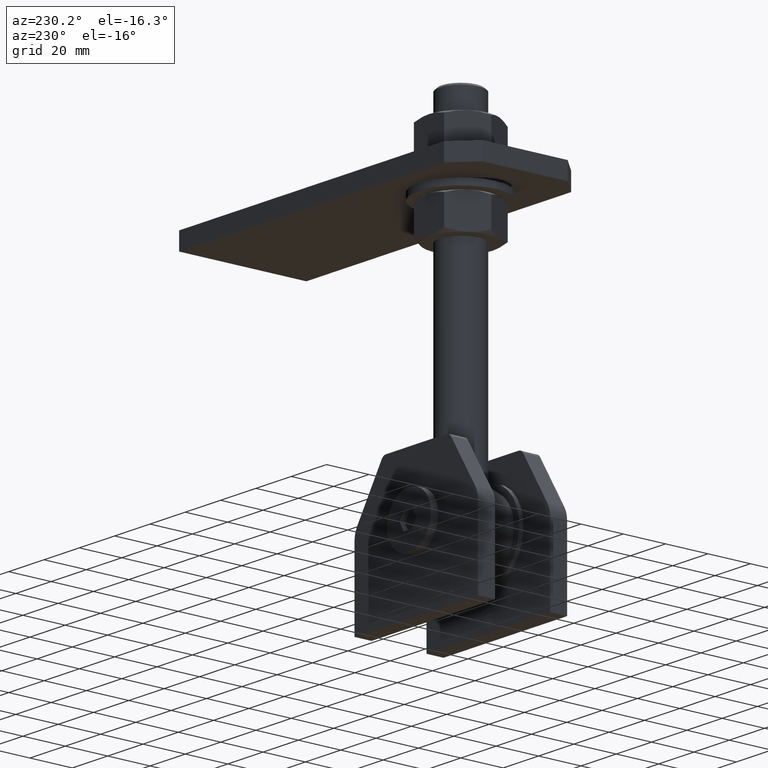
[diagram: clean part render]
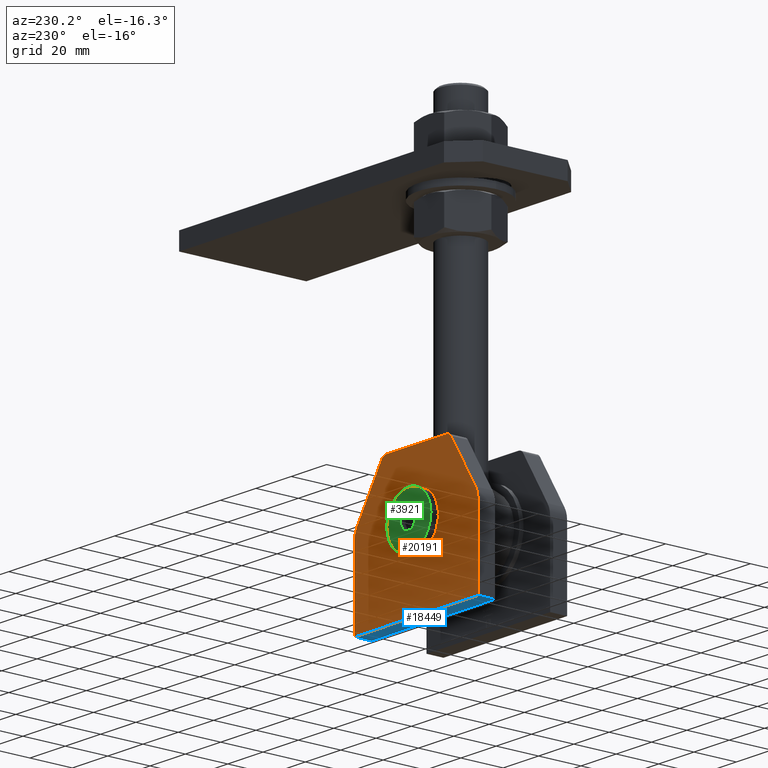
[diagram: same view with three faces highlighted in distinct colors, each labeled with its STEP entity id]
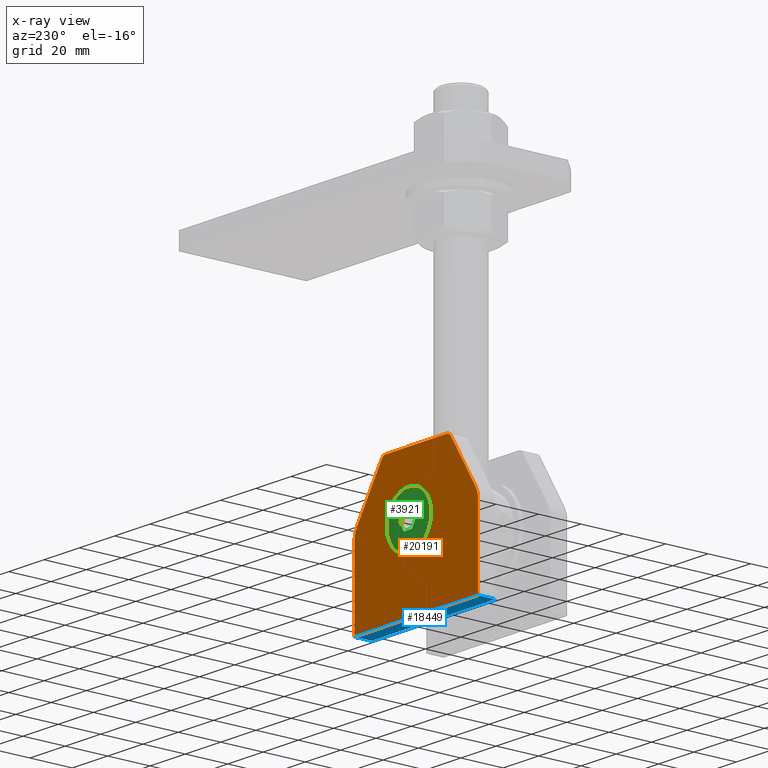
[diagram: x-ray of the same camera — body ghosted, the three highlighted faces saturated]
A machine part, auxiliary view with three faces highlighted in distinct colors.
The next image is the same camera in x-ray (body ghosted, the three faces saturated) — at least one of them is partly hidden behind the body in this view.
Their STEP definitions:

[orange] entity #20191 — the highlighted planar face has unit normal (0, 1, 0).
#202 = CARTESIAN_POINT ( 'NONE',  ( -33.47485153719618722, 4.000000000000003553, 9.008190974567826359 ) ) ;
#351 = EDGE_CURVE ( 'NONE', #22639, #17878, #8158, .T. ) ;
#378 = EDGE_CURVE ( 'NONE', #9752, #23484, #8750, .T. ) ;
#582 = VERTEX_POINT ( 'NONE', #18116 ) ;
#644 = CIRCLE ( 'NONE', #6667, 2.999999999999992450 ) ;
#716 = CARTESIAN_POINT ( 'NONE',  ( -35.00000000000000000, 4.000000000000003553, -32.50000000000000000 ) ) ;
#865 = AXIS2_PLACEMENT_3D ( 'NONE', #4740, #12184, #12445 ) ;
#1042 = DIRECTION ( 'NONE',  ( -1.000000000000000000, -0.000000000000000000, 9.912705577010325549E-17 ) ) ;
#1152 = DIRECTION ( 'NONE',  ( 0.000000000000000000, 0.000000000000000000, 1.000000000000000000 ) ) ;
#1183 = ORIENTED_EDGE ( 'NONE', *, *, #21615, .T. ) ;
#1387 = CARTESIAN_POINT ( 'NONE',  ( 17.10000000000000853, 4.000000000000003553, 32.49999999999999289 ) ) ;
#1401 = FACE_OUTER_BOUND ( 'NONE', #1902, .T. ) ;
#1450 = CIRCLE ( 'NONE', #16414, 2.999999999999992450 ) ;
#1532 = DIRECTION ( 'NONE',  ( 0.000000000000000000, 1.000000000000000000, 0.000000000000000000 ) ) ;
#1567 = AXIS2_PLACEMENT_3D ( 'NONE', #10826, #1532, #16632 ) ;
#1902 = EDGE_LOOP ( 'NONE', ( #10898, #4407, #3645, #1183, #5497, #18488, #6173, #22662, #4907, #5202 ) ) ;
#3645 = ORIENTED_EDGE ( 'NONE', *, *, #15901, .T. ) ;
#3657 = EDGE_CURVE ( 'NONE', #13640, #17986, #22980, .T. ) ;
#3664 = CIRCLE ( 'NONE', #4129, 8.250000000000000000 ) ;
#3940 = VERTEX_POINT ( 'NONE', #15706 ) ;
#4129 = AXIS2_PLACEMENT_3D ( 'NONE', #14873, #7419, #1152 ) ;
#4407 = ORIENTED_EDGE ( 'NONE', *, *, #3657, .T. ) ;
#4740 = CARTESIAN_POINT ( 'NONE',  ( -25.00000000000000000, 4.000000000000003553, 3.700000000000000622 ) ) ;
#4907 = ORIENTED_EDGE ( 'NONE', *, *, #13429, .T. ) ;
#5199 = VECTOR ( 'NONE', #7293, 1000.000000000000000 ) ;
#5202 = ORIENTED_EDGE ( 'NONE', *, *, #8223, .T. ) ;
#5405 = CARTESIAN_POINT ( 'NONE',  ( -19.64245546115884267, 4.000000000000003553, 31.09245729237035150 ) ) ;
#5497 = ORIENTED_EDGE ( 'NONE', *, *, #351, .T. ) ;
#6173 = ORIENTED_EDGE ( 'NONE', *, *, #378, .T. ) ;
#6667 = AXIS2_PLACEMENT_3D ( 'NONE', #15796, #13843, #10227 ) ;
#7293 = DIRECTION ( 'NONE',  ( 0.5308190974567825737, -0.000000000000000000, -0.8474851537196191886 ) ) ;
#7419 = DIRECTION ( 'NONE',  ( 0.000000000000000000, 1.000000000000000000, 0.000000000000000000 ) ) ;
#8158 = LINE ( 'NONE', #1387, #8436 ) ;
#8223 = EDGE_CURVE ( 'NONE', #21060, #16273, #14461, .T. ) ;
#8436 = VECTOR ( 'NONE', #18952, 1000.000000000000000 ) ;
#8750 = LINE ( 'NONE', #11202, #5199 ) ;
#8753 = VECTOR ( 'NONE', #1042, 1000.000000000000000 ) ;
#8757 = DIRECTION ( 'NONE',  ( 0.000000000000000000, 1.000000000000000000, 0.000000000000000000 ) ) ;
#8964 = CARTESIAN_POINT ( 'NONE',  ( 33.47485153719618722, 4.000000000000003553, 9.008190974567817477 ) ) ;
#9006 = DIRECTION ( 'NONE',  ( 0.000000000000000000, 0.000000000000000000, 1.000000000000000000 ) ) ;
#9286 = CARTESIAN_POINT ( 'NONE',  ( 35.00000000000000000, 4.000000000000003553, 3.699999999999993072 ) ) ;
#9428 = EDGE_CURVE ( 'NONE', #582, #582, #3664, .T. ) ;
#9488 = LINE ( 'NONE', #15122, #9765 ) ;
#9752 = VERTEX_POINT ( 'NONE', #24103 ) ;
#9765 = VECTOR ( 'NONE', #14884, 1000.000000000000000 ) ;
#10077 = ORIENTED_EDGE ( 'NONE', *, *, #9428, .F. ) ;
#10227 = DIRECTION ( 'NONE',  ( 0.000000000000000000, 0.000000000000000000, -1.000000000000000000 ) ) ;
#10305 = AXIS2_PLACEMENT_3D ( 'NONE', #18046, #22981, #15502 ) ;
#10587 = LINE ( 'NONE', #23730, #19306 ) ;
#10826 = CARTESIAN_POINT ( 'NONE',  ( 25.00000000000000711, 4.000000000000003553, 3.699999999999994404 ) ) ;
#10898 = ORIENTED_EDGE ( 'NONE', *, *, #21472, .T. ) ;
#11202 = CARTESIAN_POINT ( 'NONE',  ( 33.47485153719618722, 4.000000000000003553, 9.008190974567817477 ) ) ;
#12184 = DIRECTION ( 'NONE',  ( 0.000000000000000000, 1.000000000000000000, -0.000000000000000000 ) ) ;
#12249 = CIRCLE ( 'NONE', #1567, 9.999999999999994671 ) ;
#12445 = DIRECTION ( 'NONE',  ( 0.000000000000000000, 0.000000000000000000, -1.000000000000000000 ) ) ;
#13049 = DIRECTION ( 'NONE',  ( 0.5308190974567825737, -0.000000000000000000, 0.8474851537196192997 ) ) ;
#13201 = CARTESIAN_POINT ( 'NONE',  ( 35.00000000000000000, 4.000000000000003553, -32.50000000000000711 ) ) ;
#13429 = EDGE_CURVE ( 'NONE', #16033, #21060, #10587, .T. ) ;
#13640 = VERTEX_POINT ( 'NONE', #17187 ) ;
#13843 = DIRECTION ( 'NONE',  ( 0.000000000000000000, 1.000000000000000000, -0.000000000000000000 ) ) ;
#14461 = LINE ( 'NONE', #716, #8753 ) ;
#14873 = CARTESIAN_POINT ( 'NONE',  ( 3.469446951953614189E-15, 4.000000000000003553, 3.250000000000000888 ) ) ;
#14884 = DIRECTION ( 'NONE',  ( -0.000000000000000000, -0.000000000000000000, 1.000000000000000000 ) ) ;
#15122 = CARTESIAN_POINT ( 'NONE',  ( -35.00000000000000000, 4.000000000000003553, 3.700000000000001954 ) ) ;
#15398 = CARTESIAN_POINT ( 'NONE',  ( -35.00000000000000000, 4.000000000000003553, -32.50000000000000000 ) ) ;
#15502 = DIRECTION ( 'NONE',  ( 0.000000000000000000, -0.000000000000000000, 1.000000000000000000 ) ) ;
#15706 = CARTESIAN_POINT ( 'NONE',  ( -19.64245546115884267, 4.000000000000003553, 31.09245729237035150 ) ) ;
#15796 = CARTESIAN_POINT ( 'NONE',  ( -17.09999999999999432, 4.000000000000003553, 29.50000000000000711 ) ) ;
#15901 = EDGE_CURVE ( 'NONE', #17986, #3940, #17262, .T. ) ;
#16033 = VERTEX_POINT ( 'NONE', #9286 ) ;
#16273 = VERTEX_POINT ( 'NONE', #15398 ) ;
#16414 = AXIS2_PLACEMENT_3D ( 'NONE', #24115, #8757, #9006 ) ;
#16632 = DIRECTION ( 'NONE',  ( 0.000000000000000000, 0.000000000000000000, 1.000000000000000000 ) ) ;
#16973 = FACE_BOUND ( 'NONE', #20801, .T. ) ;
#17187 = CARTESIAN_POINT ( 'NONE',  ( -35.00000000000000000, 4.000000000000003553, 3.700000000000002398 ) ) ;
#17262 = LINE ( 'NONE', #5405, #19076 ) ;
#17878 = VERTEX_POINT ( 'NONE', #22011 ) ;
#17986 = VERTEX_POINT ( 'NONE', #202 ) ;
#18046 = CARTESIAN_POINT ( 'NONE',  ( 25.00000000000000711, 4.000000000000003553, 3.699999999999994404 ) ) ;
#18116 = CARTESIAN_POINT ( 'NONE',  ( 3.469446951953614189E-15, 4.000000000000003553, 11.50000000000000178 ) ) ;
#18305 = DIRECTION ( 'NONE',  ( -0.000000000000000000, -0.000000000000000000, -1.000000000000000000 ) ) ;
#18488 = ORIENTED_EDGE ( 'NONE', *, *, #18945, .T. ) ;
#18945 = EDGE_CURVE ( 'NONE', #17878, #9752, #1450, .T. ) ;
#18952 = DIRECTION ( 'NONE',  ( 1.000000000000000000, -0.000000000000000000, -2.028916346171704184E-16 ) ) ;
#19076 = VECTOR ( 'NONE', #13049, 1000.000000000000114 ) ;
#19306 = VECTOR ( 'NONE', #18305, 1000.000000000000000 ) ;
#20191 = ADVANCED_FACE ( 'NONE', ( #1401, #16973 ), #23061, .T. ) ;
#20801 = EDGE_LOOP ( 'NONE', ( #10077 ) ) ;
#21060 = VERTEX_POINT ( 'NONE', #13201 ) ;
#21222 = CARTESIAN_POINT ( 'NONE',  ( -17.09999999999999432, 4.000000000000003553, 32.50000000000000000 ) ) ;
#21354 = EDGE_CURVE ( 'NONE', #23484, #16033, #12249, .T. ) ;
#21472 = EDGE_CURVE ( 'NONE', #16273, #13640, #9488, .T. ) ;
#21615 = EDGE_CURVE ( 'NONE', #3940, #22639, #644, .T. ) ;
#22011 = CARTESIAN_POINT ( 'NONE',  ( 17.10000000000000853, 4.000000000000003553, 32.49999999999999289 ) ) ;
#22639 = VERTEX_POINT ( 'NONE', #21222 ) ;
#22662 = ORIENTED_EDGE ( 'NONE', *, *, #21354, .T. ) ;
#22980 = CIRCLE ( 'NONE', #865, 9.999999999999996447 ) ;
#22981 = DIRECTION ( 'NONE',  ( 0.000000000000000000, 1.000000000000000000, 0.000000000000000000 ) ) ;
#23061 = PLANE ( 'NONE',  #10305 ) ;
#23484 = VERTEX_POINT ( 'NONE', #8964 ) ;
#23730 = CARTESIAN_POINT ( 'NONE',  ( 35.00000000000000000, 4.000000000000003553, -32.50000000000000711 ) ) ;
#24103 = CARTESIAN_POINT ( 'NONE',  ( 19.64245546115885688, 4.000000000000003553, 31.09245729237034794 ) ) ;
#24115 = CARTESIAN_POINT ( 'NONE',  ( 17.10000000000000853, 4.000000000000003553, 29.50000000000000355 ) ) ;

[blue] entity #18449 — the highlighted planar face has unit normal (0, 0, 1).
#716 = CARTESIAN_POINT ( 'NONE',  ( -35.00000000000000000, 4.000000000000003553, -32.50000000000000000 ) ) ;
#1042 = DIRECTION ( 'NONE',  ( -1.000000000000000000, -0.000000000000000000, 9.912705577010325549E-17 ) ) ;
#1162 = DIRECTION ( 'NONE',  ( -0.000000000000000000, -1.000000000000000000, -0.000000000000000000 ) ) ;
#1724 = LINE ( 'NONE', #3234, #16981 ) ;
#2495 = AXIS2_PLACEMENT_3D ( 'NONE', #22616, #13002, #11006 ) ;
#3234 = CARTESIAN_POINT ( 'NONE',  ( -35.00000000000000000, -4.000000000000003553, -32.50000000000000000 ) ) ;
#3811 = ORIENTED_EDGE ( 'NONE', *, *, #11178, .T. ) ;
#4639 = VECTOR ( 'NONE', #1162, 1000.000000000000000 ) ;
#5423 = VERTEX_POINT ( 'NONE', #17129 ) ;
#6062 = EDGE_LOOP ( 'NONE', ( #3811, #12087, #13197, #8198 ) ) ;
#7857 = EDGE_CURVE ( 'NONE', #21060, #19004, #15974, .T. ) ;
#8198 = ORIENTED_EDGE ( 'NONE', *, *, #7857, .T. ) ;
#8223 = EDGE_CURVE ( 'NONE', #21060, #16273, #14461, .T. ) ;
#8753 = VECTOR ( 'NONE', #1042, 1000.000000000000000 ) ;
#9349 = EDGE_CURVE ( 'NONE', #16273, #5423, #10211, .T. ) ;
#10211 = LINE ( 'NONE', #14581, #20704 ) ;
#11006 = DIRECTION ( 'NONE',  ( 1.000000000000000000, 0.000000000000000000, -9.912705577010325549E-17 ) ) ;
#11178 = EDGE_CURVE ( 'NONE', #19004, #5423, #1724, .T. ) ;
#12087 = ORIENTED_EDGE ( 'NONE', *, *, #9349, .F. ) ;
#13002 = DIRECTION ( 'NONE',  ( 9.912705577010325549E-17, -0.000000000000000000, 1.000000000000000000 ) ) ;
#13197 = ORIENTED_EDGE ( 'NONE', *, *, #8223, .F. ) ;
#13201 = CARTESIAN_POINT ( 'NONE',  ( 35.00000000000000000, 4.000000000000003553, -32.50000000000000711 ) ) ;
#13255 = CARTESIAN_POINT ( 'NONE',  ( 35.00000000000000000, -4.000000000000003553, -32.50000000000000711 ) ) ;
#14461 = LINE ( 'NONE', #716, #8753 ) ;
#14581 = CARTESIAN_POINT ( 'NONE',  ( -35.00000000000000000, 4.000000000000003553, -32.50000000000000000 ) ) ;
#15398 = CARTESIAN_POINT ( 'NONE',  ( -35.00000000000000000, 4.000000000000003553, -32.50000000000000000 ) ) ;
#15974 = LINE ( 'NONE', #23584, #4639 ) ;
#16273 = VERTEX_POINT ( 'NONE', #15398 ) ;
#16981 = VECTOR ( 'NONE', #22323, 1000.000000000000000 ) ;
#17129 = CARTESIAN_POINT ( 'NONE',  ( -35.00000000000000000, -4.000000000000003553, -32.50000000000000000 ) ) ;
#18449 = ADVANCED_FACE ( 'NONE', ( #19425 ), #18760, .F. ) ;
#18760 = PLANE ( 'NONE',  #2495 ) ;
#19004 = VERTEX_POINT ( 'NONE', #13255 ) ;
#19425 = FACE_OUTER_BOUND ( 'NONE', #6062, .T. ) ;
#20276 = DIRECTION ( 'NONE',  ( -0.000000000000000000, -1.000000000000000000, -0.000000000000000000 ) ) ;
#20704 = VECTOR ( 'NONE', #20276, 1000.000000000000000 ) ;
#21060 = VERTEX_POINT ( 'NONE', #13201 ) ;
#22323 = DIRECTION ( 'NONE',  ( -1.000000000000000000, -0.000000000000000000, 9.912705577010325549E-17 ) ) ;
#22616 = CARTESIAN_POINT ( 'NONE',  ( -35.00000000000000000, 4.000000000000003553, -32.50000000000000000 ) ) ;
#23584 = CARTESIAN_POINT ( 'NONE',  ( 35.00000000000000000, 4.000000000000003553, -32.50000000000000711 ) ) ;

[green] entity #3921 — the highlighted spherical surface has radius 156.5 mm.
#276 = AXIS2_PLACEMENT_3D ( 'NONE', #19428, #2457, #13774 ) ;
#864 = CARTESIAN_POINT ( 'NONE',  ( 3.464101615137760604, -137.5000000000002842, -1.999999999999990896 ) ) ;
#2457 = DIRECTION ( 'NONE',  ( 0.000000000000000000, -0.000000000000000000, -1.000000000000000000 ) ) ;
#2637 = ORIENTED_EDGE ( 'NONE', *, *, #16739, .F. ) ;
#3352 = CIRCLE ( 'NONE', #10801, 12.49999999999999112 ) ;
#3414 = SPHERICAL_SURFACE ( 'NONE', #15900, 156.5000000000003126 ) ;
#3567 = CARTESIAN_POINT ( 'NONE',  ( -2.309401076758500704, 18.93182753732272516, -3.999999999999998224 ) ) ;
#3872 = CIRCLE ( 'NONE', #15281, 156.4488734379385448 ) ;
#3921 = ADVANCED_FACE ( 'NONE', ( #11026, #16108 ), #3414, .T. ) ;
#4355 = EDGE_CURVE ( 'NONE', #14082, #17690, #3872, .T. ) ;
#4425 = CARTESIAN_POINT ( 'NONE',  ( 4.618802153517008513, 18.93182753732272516, -8.673617379884035472E-16 ) ) ;
#4495 = CARTESIAN_POINT ( 'NONE',  ( 12.49999999999999289, 18.50000000000001776, 0.000000000000000000 ) ) ;
#5016 = EDGE_CURVE ( 'NONE', #6737, #14082, #21059, .T. ) ;
#5298 = EDGE_CURVE ( 'NONE', #8900, #6029, #9056, .T. ) ;
#5771 = VERTEX_POINT ( 'NONE', #21382 ) ;
#5978 = CARTESIAN_POINT ( 'NONE',  ( 2.309401076758504701, 18.93182753732272516, 4.000000000000000000 ) ) ;
#6029 = VERTEX_POINT ( 'NONE', #22633 ) ;
#6093 = DIRECTION ( 'NONE',  ( 0.5000000000000000000, 1.066233369306438822E-13, 0.8660254037844387076 ) ) ;
#6734 = ORIENTED_EDGE ( 'NONE', *, *, #5016, .F. ) ;
#6737 = VERTEX_POINT ( 'NONE', #5978 ) ;
#7381 = DIRECTION ( 'NONE',  ( -1.000000000000000000, 7.114136124656936990E-14, 3.769959916432915292E-16 ) ) ;
#7463 = DIRECTION ( 'NONE',  ( 3.755786496842900043E-16, 0.000000000000000000, 1.000000000000000000 ) ) ;
#8164 = CARTESIAN_POINT ( 'NONE',  ( 2.489159519226945511E-14, -137.5000000000002842, 0.000000000000000000 ) ) ;
#8515 = EDGE_CURVE ( 'NONE', #5771, #6737, #22206, .T. ) ;
#8900 = VERTEX_POINT ( 'NONE', #3567 ) ;
#9056 = CIRCLE ( 'NONE', #13645, 156.4488734379384880 ) ;
#9123 = ORIENTED_EDGE ( 'NONE', *, *, #21536, .F. ) ;
#9251 = CIRCLE ( 'NONE', #20566, 156.4488734379385164 ) ;
#9822 = DIRECTION ( 'NONE',  ( 0.8660254037844387076, -0.000000000000000000, -0.4999999999999998890 ) ) ;
#9824 = EDGE_CURVE ( 'NONE', #10097, #10097, #3352, .T. ) ;
#9831 = DIRECTION ( 'NONE',  ( 1.000000000000000000, -1.773519208666380910E-16, 0.000000000000000000 ) ) ;
#10097 = VERTEX_POINT ( 'NONE', #4495 ) ;
#10133 = CARTESIAN_POINT ( 'NONE',  ( 2.309401076758503368, 18.93182753732272516, -4.000000000000000000 ) ) ;
#10801 = AXIS2_PLACEMENT_3D ( 'NONE', #20641, #11077, #12994 ) ;
#10910 = DIRECTION ( 'NONE',  ( -0.8660254037844387076, -0.000000000000000000, -0.4999999999999998890 ) ) ;
#11026 = FACE_OUTER_BOUND ( 'NONE', #12229, .T. ) ;
#11077 = DIRECTION ( 'NONE',  ( -1.252009581588831962E-16, -1.000000000000000000, -0.000000000000000000 ) ) ;
#12229 = EDGE_LOOP ( 'NONE', ( #15527, #6734, #12962, #9123, #17541, #2637 ) ) ;
#12434 = DIRECTION ( 'NONE',  ( -0.5000000000000003331, 7.114136124656935728E-14, -0.8660254037844383745 ) ) ;
#12962 = ORIENTED_EDGE ( 'NONE', *, *, #8515, .F. ) ;
#12994 = DIRECTION ( 'NONE',  ( 1.000000000000000000, 0.000000000000000000, 0.000000000000000000 ) ) ;
#13645 = AXIS2_PLACEMENT_3D ( 'NONE', #15875, #16192, #13930 ) ;
#13774 = DIRECTION ( 'NONE',  ( 1.000000000000000000, 7.114136124656936990E-14, 0.000000000000000000 ) ) ;
#13930 = DIRECTION ( 'NONE',  ( -0.5000000000000000000, 7.114136124656938253E-14, 0.8660254037844387076 ) ) ;
#14082 = VERTEX_POINT ( 'NONE', #4425 ) ;
#14883 = DIRECTION ( 'NONE',  ( 0.5000000000000000000, 1.066233369306438822E-13, -0.8660254037844387076 ) ) ;
#15171 = ORIENTED_EDGE ( 'NONE', *, *, #9824, .F. ) ;
#15281 = AXIS2_PLACEMENT_3D ( 'NONE', #864, #23867, #12434 ) ;
#15527 = ORIENTED_EDGE ( 'NONE', *, *, #4355, .F. ) ;
#15875 = CARTESIAN_POINT ( 'NONE',  ( -3.464101615137745949, -137.5000000000002842, -2.000000000000008882 ) ) ;
#15900 = AXIS2_PLACEMENT_3D ( 'NONE', #8164, #21563, #9831 ) ;
#16108 = FACE_OUTER_BOUND ( 'NONE', #24741, .T. ) ;
#16192 = DIRECTION ( 'NONE',  ( 0.8660254037844387076, 0.000000000000000000, 0.4999999999999998890 ) ) ;
#16589 = AXIS2_PLACEMENT_3D ( 'NONE', #21298, #9822, #6093 ) ;
#16739 = EDGE_CURVE ( 'NONE', #17690, #8900, #9251, .T. ) ;
#17541 = ORIENTED_EDGE ( 'NONE', *, *, #5298, .F. ) ;
#17690 = VERTEX_POINT ( 'NONE', #10133 ) ;
#18831 = AXIS2_PLACEMENT_3D ( 'NONE', #22447, #10910, #14883 ) ;
#19428 = CARTESIAN_POINT ( 'NONE',  ( 2.489159519226945511E-14, -137.5000000000002842, 4.000000000000000000 ) ) ;
#20566 = AXIS2_PLACEMENT_3D ( 'NONE', #22399, #7463, #7381 ) ;
#20641 = CARTESIAN_POINT ( 'NONE',  ( 2.316217725939341262E-15, 18.50000000000001776, 0.000000000000000000 ) ) ;
#21059 = CIRCLE ( 'NONE', #18831, 156.4488734379384880 ) ;
#21298 = CARTESIAN_POINT ( 'NONE',  ( -3.464101615137745949, -137.5000000000002842, 2.000000000000008882 ) ) ;
#21382 = CARTESIAN_POINT ( 'NONE',  ( -2.309401076758499816, 18.93182753732272516, 4.000000000000000000 ) ) ;
#21536 = EDGE_CURVE ( 'NONE', #6029, #5771, #22644, .T. ) ;
#21563 = DIRECTION ( 'NONE',  ( -0.000000000000000000, 0.000000000000000000, 1.000000000000000000 ) ) ;
#22206 = CIRCLE ( 'NONE', #276, 156.4488734379385164 ) ;
#22399 = CARTESIAN_POINT ( 'NONE',  ( 2.338928059353229548E-14, -137.5000000000002842, -3.999999999999999112 ) ) ;
#22447 = CARTESIAN_POINT ( 'NONE',  ( 3.464101615137761936, -137.5000000000002842, 1.999999999999989564 ) ) ;
#22633 = CARTESIAN_POINT ( 'NONE',  ( -4.618802153517002296, 18.93182753732272516, 0.000000000000000000 ) ) ;
#22644 = CIRCLE ( 'NONE', #16589, 156.4488734379384880 ) ;
#23867 = DIRECTION ( 'NONE',  ( -0.8660254037844385966, -0.000000000000000000, 0.5000000000000004441 ) ) ;
#24741 = EDGE_LOOP ( 'NONE', ( #15171 ) ) ;